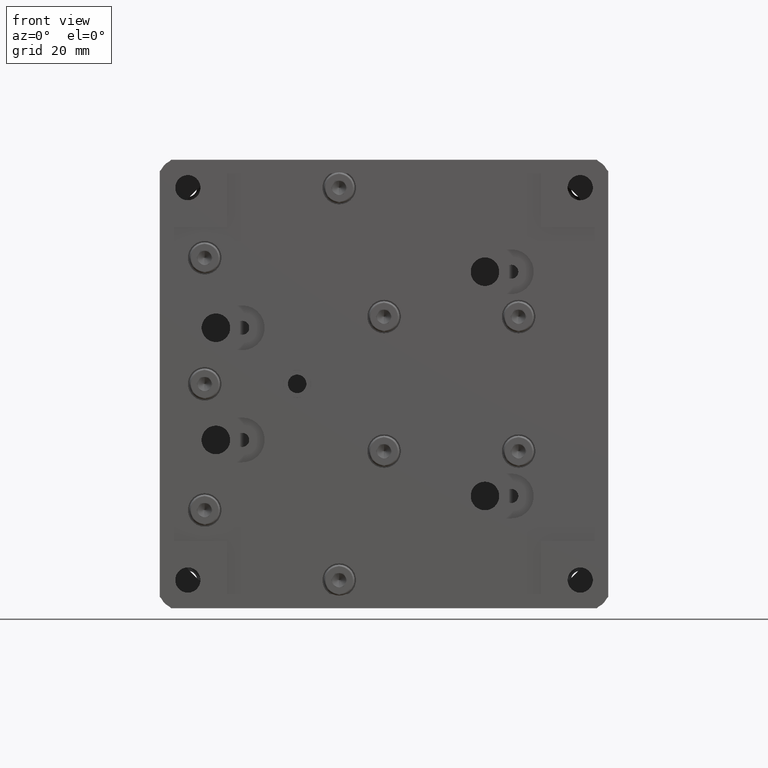
[diagram: clean part render]
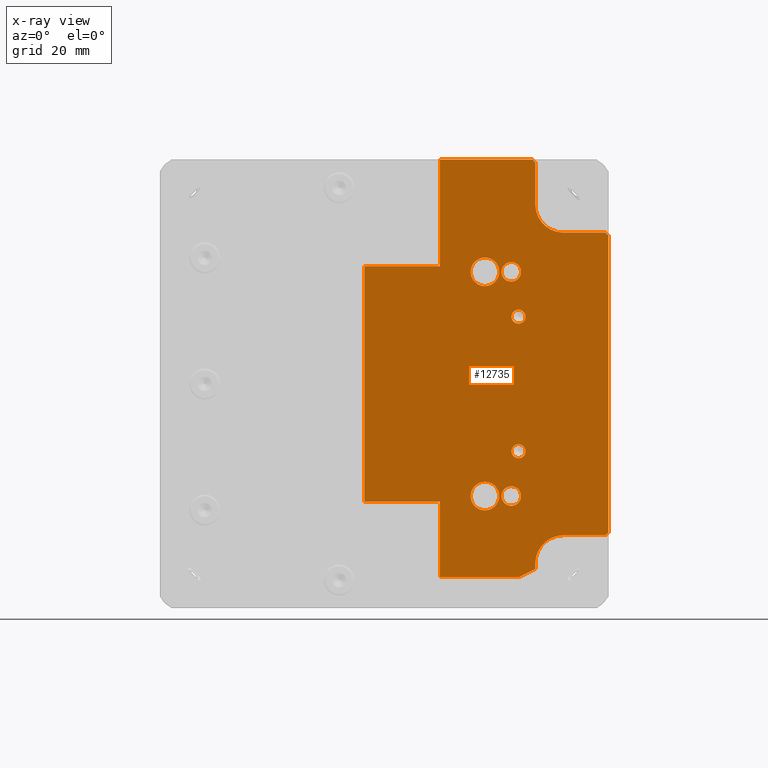
[diagram: x-ray — body ghosted, one internal face saturated and labeled with its STEP entity id]
A machine part, front view, then the same camera in x-ray: the body is ghosted and one INTERNAL B-rep face — a face not visible from any outside direction — is saturated and labeled: STEP entity #12735.
In plain terms, the highlighted planar face has unit normal (0, -1, 0).
Its self-contained STEP definition (entity closure, byte-faithful):
#14 = EDGE_CURVE ( 'NONE', #6667, #28354, #18960, .T. ) ;
#34 = DIRECTION ( 'NONE',  ( 0.000000000000000000, -0.000000000000000000, -1.000000000000000000 ) ) ;
#103 = EDGE_CURVE ( 'NONE', #26121, #7467, #31530, .T. ) ;
#215 = LINE ( 'NONE', #22937, #22414 ) ;
#220 = FACE_BOUND ( 'NONE', #16143, .T. ) ;
#727 = CARTESIAN_POINT ( 'NONE',  ( 22.69999999999999218, 8.000000000000000000, 21.75000000000000000 ) ) ;
#780 = DIRECTION ( 'NONE',  ( 0.000000000000000000, 0.000000000000000000, -1.000000000000000000 ) ) ;
#982 = ORIENTED_EDGE ( 'NONE', *, *, #13662, .T. ) ;
#1178 = AXIS2_PLACEMENT_3D ( 'NONE', #23961, #12142, #3293 ) ;
#1300 = CARTESIAN_POINT ( 'NONE',  ( 24.00000000000000000, 8.000000000000000000, -11.99999999999999822 ) ) ;
#1381 = AXIS2_PLACEMENT_3D ( 'NONE', #9286, #2917, #32216 ) ;
#1557 = CARTESIAN_POINT ( 'NONE',  ( -3.499999999999985789, 8.000000000000000000, 0.000000000000000000 ) ) ;
#1820 = VERTEX_POINT ( 'NONE', #5589 ) ;
#1840 = DIRECTION ( 'NONE',  ( 0.000000000000000000, 1.000000000000000000, 0.000000000000000000 ) ) ;
#1886 = VECTOR ( 'NONE', #27815, 1000.000000000000000 ) ;
#2298 = VECTOR ( 'NONE', #30797, 1000.000000000000000 ) ;
#2299 = CARTESIAN_POINT ( 'NONE',  ( 24.00000000000000000, 8.000000000000000000, -10.75000000000000000 ) ) ;
#2423 = ORIENTED_EDGE ( 'NONE', *, *, #25797, .T. ) ;
#2499 = VERTEX_POINT ( 'NONE', #16232 ) ;
#2547 = ORIENTED_EDGE ( 'NONE', *, *, #23676, .T. ) ;
#2917 = DIRECTION ( 'NONE',  ( 0.000000000000000000, 1.000000000000000000, 0.000000000000000000 ) ) ;
#3038 = DIRECTION ( 'NONE',  ( 0.000000000000000000, 1.000000000000000000, 0.000000000000000000 ) ) ;
#3293 = DIRECTION ( 'NONE',  ( 0.000000000000000000, 0.000000000000000000, -1.000000000000000000 ) ) ;
#3353 = AXIS2_PLACEMENT_3D ( 'NONE', #13207, #33836, #19029 ) ;
#3566 = PLANE ( 'NONE',  #32390 ) ;
#3661 = VERTEX_POINT ( 'NONE', #23385 ) ;
#3919 = VERTEX_POINT ( 'NONE', #19593 ) ;
#3923 = VECTOR ( 'NONE', #35588, 1000.000000000000000 ) ;
#3957 = DIRECTION ( 'NONE',  ( -1.000000000000000000, -0.000000000000000000, -0.000000000000000000 ) ) ;
#4031 = DIRECTION ( 'NONE',  ( 0.8944271909999177428, 0.000000000000000000, 0.4472135954999542085 ) ) ;
#4196 = AXIS2_PLACEMENT_3D ( 'NONE', #8423, #31351, #26405 ) ;
#4234 = DIRECTION ( 'NONE',  ( 0.000000000000000000, 1.000000000000000000, 0.000000000000000000 ) ) ;
#4543 = VERTEX_POINT ( 'NONE', #30219 ) ;
#4558 = EDGE_CURVE ( 'NONE', #28797, #10318, #6382, .T. ) ;
#4639 = VERTEX_POINT ( 'NONE', #33766 ) ;
#4787 = CARTESIAN_POINT ( 'NONE',  ( 32.00000000000003553, 8.000000000000007105, 27.00000000000000000 ) ) ;
#4844 = CARTESIAN_POINT ( 'NONE',  ( 17.99999999999999289, 8.000000000000000000, 19.99999999999999645 ) ) ;
#5434 = EDGE_CURVE ( 'NONE', #13845, #17043, #23989, .T. ) ;
#5468 = VECTOR ( 'NONE', #11024, 1000.000000000000000 ) ;
#5589 = CARTESIAN_POINT ( 'NONE',  ( 32.00000000000003553, 8.000000000000005329, -27.00000000000000000 ) ) ;
#6082 = ORIENTED_EDGE ( 'NONE', *, *, #15758, .T. ) ;
#6175 = CIRCLE ( 'NONE', #1381, 2.550000000000000266 ) ;
#6342 = VERTEX_POINT ( 'NONE', #727 ) ;
#6382 = CIRCLE ( 'NONE', #7592, 1.249999999999997558 ) ;
#6561 = CIRCLE ( 'NONE', #1178, 1.249999999999997558 ) ;
#6667 = VERTEX_POINT ( 'NONE', #31321 ) ;
#6677 = DIRECTION ( 'NONE',  ( 0.000000000000000000, 0.000000000000000000, -1.000000000000000000 ) ) ;
#6846 = CARTESIAN_POINT ( 'NONE',  ( 24.00000000000001066, 8.000000000000000000, -34.49999999999998579 ) ) ;
#6983 = ORIENTED_EDGE ( 'NONE', *, *, #103, .T. ) ;
#6988 = VECTOR ( 'NONE', #4031, 1000.000000000000000 ) ;
#7190 = DIRECTION ( 'NONE',  ( 0.000000000000000000, -0.000000000000000000, -1.000000000000000000 ) ) ;
#7228 = CARTESIAN_POINT ( 'NONE',  ( 27.00000000000004263, 8.000000000000000000, 0.000000000000000000 ) ) ;
#7467 = VERTEX_POINT ( 'NONE', #23135 ) ;
#7592 = AXIS2_PLACEMENT_3D ( 'NONE', #1300, #35468, #30407 ) ;
#7684 = ORIENTED_EDGE ( 'NONE', *, *, #16339, .T. ) ;
#8036 = CIRCLE ( 'NONE', #17649, 1.750000000000001554 ) ;
#8184 = CARTESIAN_POINT ( 'NONE',  ( 18.00000000000000711, 8.000000000000000000, -22.54999999999999005 ) ) ;
#8261 = CARTESIAN_POINT ( 'NONE',  ( 0.000000000000000000, 8.000000000000000000, 26.99999999999999645 ) ) ;
#8381 = EDGE_LOOP ( 'NONE', ( #14907, #24827 ) ) ;
#8423 = CARTESIAN_POINT ( 'NONE',  ( 24.00000000000000000, 8.000000000000000000, 12.00000000000000178 ) ) ;
#8483 = FACE_BOUND ( 'NONE', #22692, .T. ) ;
#8576 = EDGE_LOOP ( 'NONE', ( #32585, #18809 ) ) ;
#8715 = LINE ( 'NONE', #25826, #25892 ) ;
#8774 = EDGE_CURVE ( 'NONE', #4543, #15415, #24605, .T. ) ;
#9129 = EDGE_CURVE ( 'NONE', #25798, #9602, #16838, .T. ) ;
#9217 = DIRECTION ( 'NONE',  ( 0.000000000000000000, 1.000000000000000000, 0.000000000000000000 ) ) ;
#9286 = CARTESIAN_POINT ( 'NONE',  ( 18.00000000000000711, 8.000000000000000000, -19.99999999999998934 ) ) ;
#9593 = VECTOR ( 'NONE', #3957, 1000.000000000000000 ) ;
#9602 = VERTEX_POINT ( 'NONE', #13226 ) ;
#9809 = LINE ( 'NONE', #1557, #20121 ) ;
#10059 = CARTESIAN_POINT ( 'NONE',  ( 40.00000000000003553, 8.000000000000000000, 0.000000000000000000 ) ) ;
#10146 = CARTESIAN_POINT ( 'NONE',  ( 32.00000000000003553, 8.000000000000007105, 32.00000000000000000 ) ) ;
#10318 = VERTEX_POINT ( 'NONE', #16150 ) ;
#10433 = EDGE_CURVE ( 'NONE', #15415, #4543, #20382, .T. ) ;
#10560 = EDGE_CURVE ( 'NONE', #9602, #2499, #24331, .T. ) ;
#10877 = CARTESIAN_POINT ( 'NONE',  ( 10.00000000000001243, 8.000000000000005329, 21.00000000000000000 ) ) ;
#11024 = DIRECTION ( 'NONE',  ( 1.000000000000000000, 0.000000000000000000, 0.000000000000000000 ) ) ;
#11054 = VERTEX_POINT ( 'NONE', #23904 ) ;
#11087 = LINE ( 'NONE', #28383, #17803 ) ;
#11307 = ORIENTED_EDGE ( 'NONE', *, *, #33908, .T. ) ;
#11549 = DIRECTION ( 'NONE',  ( 1.000000000000000000, 0.000000000000000000, 0.000000000000000000 ) ) ;
#11671 = FACE_BOUND ( 'NONE', #32676, .T. ) ;
#11702 = VERTEX_POINT ( 'NONE', #10877 ) ;
#12142 = DIRECTION ( 'NONE',  ( 0.000000000000000000, 1.000000000000000000, 0.000000000000000000 ) ) ;
#12262 = VERTEX_POINT ( 'NONE', #36939 ) ;
#12310 = LINE ( 'NONE', #6846, #6988 ) ;
#12333 = CIRCLE ( 'NONE', #36917, 1.750000000000001554 ) ;
#12396 = EDGE_CURVE ( 'NONE', #10318, #28797, #6561, .T. ) ;
#12447 = ORIENTED_EDGE ( 'NONE', *, *, #26135, .T. ) ;
#12521 = LINE ( 'NONE', #18341, #25134 ) ;
#12611 = CARTESIAN_POINT ( 'NONE',  ( 22.69999999999998153, 8.000000000000000000, -21.75000000000000711 ) ) ;
#12735 = ADVANCED_FACE ( 'NONE', ( #220, #8483, #29314, #20294, #11671, #25770, #20488 ), #3566, .T. ) ;
#12781 = LINE ( 'NONE', #27943, #5468 ) ;
#12975 = CARTESIAN_POINT ( 'NONE',  ( 22.69999999999999218, 8.000000000000000000, 18.24999999999999645 ) ) ;
#12998 = ORIENTED_EDGE ( 'NONE', *, *, #36245, .T. ) ;
#13129 = VERTEX_POINT ( 'NONE', #20256 ) ;
#13130 = EDGE_LOOP ( 'NONE', ( #14703, #18642 ) ) ;
#13133 = ORIENTED_EDGE ( 'NONE', *, *, #14, .T. ) ;
#13207 = CARTESIAN_POINT ( 'NONE',  ( 22.69999999999999218, 8.000000000000000000, 19.99999999999999645 ) ) ;
#13226 = CARTESIAN_POINT ( 'NONE',  ( 27.00000000000004619, 8.000000000000005329, 32.00000000000000000 ) ) ;
#13334 = DIRECTION ( 'NONE',  ( 0.7071067811865378028, 0.000000000000000000, 0.7071067811865573427 ) ) ;
#13347 = CARTESIAN_POINT ( 'NONE',  ( 22.69999999999998153, 8.000000000000000000, -18.25000000000000355 ) ) ;
#13379 = ORIENTED_EDGE ( 'NONE', *, *, #27803, .T. ) ;
#13662 = EDGE_CURVE ( 'NONE', #18183, #13129, #12781, .T. ) ;
#13845 = VERTEX_POINT ( 'NONE', #15146 ) ;
#14058 = EDGE_CURVE ( 'NONE', #1820, #6667, #8715, .T. ) ;
#14090 = CIRCLE ( 'NONE', #18890, 2.550000000000000266 ) ;
#14340 = ORIENTED_EDGE ( 'NONE', *, *, #25846, .T. ) ;
#14703 = ORIENTED_EDGE ( 'NONE', *, *, #17491, .T. ) ;
#14907 = ORIENTED_EDGE ( 'NONE', *, *, #12396, .T. ) ;
#14962 = DIRECTION ( 'NONE',  ( 0.000000000000000000, 0.000000000000000000, 1.000000000000000000 ) ) ;
#15023 = AXIS2_PLACEMENT_3D ( 'NONE', #10146, #28009, #21605 ) ;
#15140 = DIRECTION ( 'NONE',  ( 0.000000000000000000, 1.000000000000000000, 0.000000000000000000 ) ) ;
#15146 = CARTESIAN_POINT ( 'NONE',  ( 18.00000000000000711, 8.000000000000000000, -17.44999999999998863 ) ) ;
#15415 = VERTEX_POINT ( 'NONE', #22865 ) ;
#15710 = DIRECTION ( 'NONE',  ( 0.000000000000000000, 0.000000000000000000, -1.000000000000000000 ) ) ;
#15721 = LINE ( 'NONE', #10059, #31769 ) ;
#15758 = EDGE_CURVE ( 'NONE', #20870, #6342, #35741, .T. ) ;
#16081 = LINE ( 'NONE', #21310, #18342 ) ;
#16143 = EDGE_LOOP ( 'NONE', ( #6082, #12998 ) ) ;
#16150 = CARTESIAN_POINT ( 'NONE',  ( 24.00000000000000000, 8.000000000000000000, -13.24999999999999645 ) ) ;
#16232 = CARTESIAN_POINT ( 'NONE',  ( 27.00000000000004263, 7.999999999999977796, 39.50000000000000000 ) ) ;
#16339 = EDGE_CURVE ( 'NONE', #31517, #4639, #30313, .T. ) ;
#16345 = LINE ( 'NONE', #33598, #2298 ) ;
#16700 = CARTESIAN_POINT ( 'NONE',  ( 39.50000000000004974, 8.000000000000007105, -26.99999999999999645 ) ) ;
#16838 = CIRCLE ( 'NONE', #15023, 4.999999999999997335 ) ;
#17043 = VERTEX_POINT ( 'NONE', #8184 ) ;
#17491 = EDGE_CURVE ( 'NONE', #17043, #13845, #6175, .T. ) ;
#17649 = AXIS2_PLACEMENT_3D ( 'NONE', #29507, #9217, #780 ) ;
#17803 = VECTOR ( 'NONE', #33624, 1000.000000000000000 ) ;
#18152 = CARTESIAN_POINT ( 'NONE',  ( 18.00000000000000711, 8.000000000000000000, -19.99999999999998934 ) ) ;
#18183 = VERTEX_POINT ( 'NONE', #19376 ) ;
#18341 = CARTESIAN_POINT ( 'NONE',  ( 27.00000000000004619, 8.000000000000007105, -39.99999999999999289 ) ) ;
#18342 = VECTOR ( 'NONE', #24717, 1000.000000000000114 ) ;
#18378 = EDGE_CURVE ( 'NONE', #3661, #11702, #215, .T. ) ;
#18421 = CARTESIAN_POINT ( 'NONE',  ( 27.00000000000004619, 8.000000000000007105, -32.99999999999998579 ) ) ;
#18642 = ORIENTED_EDGE ( 'NONE', *, *, #5434, .T. ) ;
#18809 = ORIENTED_EDGE ( 'NONE', *, *, #8774, .T. ) ;
#18890 = AXIS2_PLACEMENT_3D ( 'NONE', #36471, #30842, #31404 ) ;
#18936 = CARTESIAN_POINT ( 'NONE',  ( 40.00000000000003553, 8.000000000000003553, -26.49999999999999645 ) ) ;
#18960 = LINE ( 'NONE', #16700, #22890 ) ;
#19029 = DIRECTION ( 'NONE',  ( 0.000000000000000000, 0.000000000000000000, -1.000000000000000000 ) ) ;
#19376 = CARTESIAN_POINT ( 'NONE',  ( -3.499999999999996003, 8.000000000000007105, -21.00000000000000000 ) ) ;
#19525 = LINE ( 'NONE', #8261, #9593 ) ;
#19527 = CARTESIAN_POINT ( 'NONE',  ( -3.499999999999985789, 8.000000000000003553, 21.00000000000000000 ) ) ;
#19593 = CARTESIAN_POINT ( 'NONE',  ( 26.50000000000004263, 7.999999999999967137, 39.99999999999999289 ) ) ;
#19687 = VERTEX_POINT ( 'NONE', #18421 ) ;
#19897 = EDGE_CURVE ( 'NONE', #3919, #3661, #16345, .T. ) ;
#20098 = ORIENTED_EDGE ( 'NONE', *, *, #10560, .T. ) ;
#20106 = DIRECTION ( 'NONE',  ( 0.000000000000000000, -0.000000000000000000, -1.000000000000000000 ) ) ;
#20121 = VECTOR ( 'NONE', #7190, 1000.000000000000000 ) ;
#20130 = CARTESIAN_POINT ( 'NONE',  ( 22.69999999999999218, 8.000000000000000000, 19.99999999999999645 ) ) ;
#20256 = CARTESIAN_POINT ( 'NONE',  ( 10.00000000000001066, 8.000000000000005329, -21.00000000000000355 ) ) ;
#20294 = FACE_BOUND ( 'NONE', #8576, .T. ) ;
#20382 = CIRCLE ( 'NONE', #4196, 1.249999999999997558 ) ;
#20488 = FACE_OUTER_BOUND ( 'NONE', #34099, .T. ) ;
#20870 = VERTEX_POINT ( 'NONE', #12975 ) ;
#21069 = VERTEX_POINT ( 'NONE', #13347 ) ;
#21076 = VECTOR ( 'NONE', #31707, 1000.000000000000000 ) ;
#21310 = CARTESIAN_POINT ( 'NONE',  ( 27.00000000000004619, 7.999999999999923617, 39.49999999999999289 ) ) ;
#21326 = CARTESIAN_POINT ( 'NONE',  ( 17.99999999999999289, 8.000000000000000000, 17.44999999999999574 ) ) ;
#21514 = DIRECTION ( 'NONE',  ( -0.000000000000000000, 0.000000000000000000, 1.000000000000000000 ) ) ;
#21605 = DIRECTION ( 'NONE',  ( 0.000000000000000000, 0.000000000000000000, 1.000000000000000000 ) ) ;
#22414 = VECTOR ( 'NONE', #20106, 1000.000000000000000 ) ;
#22475 = DIRECTION ( 'NONE',  ( 0.000000000000000000, 1.000000000000000000, 0.000000000000000000 ) ) ;
#22692 = EDGE_LOOP ( 'NONE', ( #14340, #13379 ) ) ;
#22865 = CARTESIAN_POINT ( 'NONE',  ( 24.00000000000000000, 8.000000000000000000, 10.75000000000000355 ) ) ;
#22890 = VECTOR ( 'NONE', #13334, 1000.000000000000000 ) ;
#22937 = CARTESIAN_POINT ( 'NONE',  ( 10.00000000000001954, 8.000000000000000000, 0.000000000000000000 ) ) ;
#23135 = CARTESIAN_POINT ( 'NONE',  ( 39.50000000000001421, 8.000000000000005329, 26.99999999999999645 ) ) ;
#23385 = CARTESIAN_POINT ( 'NONE',  ( 10.00000000000001954, 7.999999999999991118, 39.99999999999999289 ) ) ;
#23390 = ORIENTED_EDGE ( 'NONE', *, *, #14058, .T. ) ;
#23395 = AXIS2_PLACEMENT_3D ( 'NONE', #31234, #28779, #36858 ) ;
#23493 = ORIENTED_EDGE ( 'NONE', *, *, #30326, .T. ) ;
#23676 = EDGE_CURVE ( 'NONE', #12262, #19687, #12310, .T. ) ;
#23734 = CARTESIAN_POINT ( 'NONE',  ( 40.00000000000000711, 8.000000000000007105, 26.49999999999998224 ) ) ;
#23904 = CARTESIAN_POINT ( 'NONE',  ( 10.00000000000001599, 8.000000000000003553, -34.49999999999999289 ) ) ;
#23961 = CARTESIAN_POINT ( 'NONE',  ( 24.00000000000000000, 8.000000000000000000, -11.99999999999999822 ) ) ;
#23989 = CIRCLE ( 'NONE', #33084, 2.550000000000000266 ) ;
#24160 = CARTESIAN_POINT ( 'NONE',  ( 0.000000000000000000, 8.000000000000000000, -34.49999999999999289 ) ) ;
#24254 = CARTESIAN_POINT ( 'NONE',  ( 0.000000000000000000, 8.000000000000000000, 21.00000000000000000 ) ) ;
#24257 = CARTESIAN_POINT ( 'NONE',  ( 27.00000000000003908, 8.000000000000007105, -32.00000000000000711 ) ) ;
#24331 = LINE ( 'NONE', #7228, #29990 ) ;
#24551 = AXIS2_PLACEMENT_3D ( 'NONE', #36768, #22475, #29798 ) ;
#24605 = CIRCLE ( 'NONE', #23395, 1.249999999999997558 ) ;
#24717 = DIRECTION ( 'NONE',  ( -0.7071067811865474617, 0.000000000000000000, 0.7071067811865474617 ) ) ;
#24827 = ORIENTED_EDGE ( 'NONE', *, *, #4558, .T. ) ;
#25134 = VECTOR ( 'NONE', #14962, 1000.000000000000000 ) ;
#25706 = ORIENTED_EDGE ( 'NONE', *, *, #36541, .T. ) ;
#25770 = FACE_BOUND ( 'NONE', #13130, .T. ) ;
#25797 = EDGE_CURVE ( 'NONE', #11054, #12262, #30338, .T. ) ;
#25798 = VERTEX_POINT ( 'NONE', #4787 ) ;
#25799 = EDGE_CURVE ( 'NONE', #2499, #3919, #16081, .T. ) ;
#25826 = CARTESIAN_POINT ( 'NONE',  ( 0.000000000000000000, 8.000000000000000000, -27.00000000000000000 ) ) ;
#25846 = EDGE_CURVE ( 'NONE', #31265, #21069, #12333, .T. ) ;
#25892 = VECTOR ( 'NONE', #11549, 1000.000000000000000 ) ;
#25977 = DIRECTION ( 'NONE',  ( 0.000000000000000000, 0.000000000000000000, -1.000000000000000000 ) ) ;
#26121 = VERTEX_POINT ( 'NONE', #23734 ) ;
#26135 = EDGE_CURVE ( 'NONE', #28083, #18183, #9809, .T. ) ;
#26269 = ORIENTED_EDGE ( 'NONE', *, *, #32622, .T. ) ;
#26405 = DIRECTION ( 'NONE',  ( 0.000000000000000000, 0.000000000000000000, -1.000000000000000000 ) ) ;
#27074 = CIRCLE ( 'NONE', #33066, 1.750000000000001554 ) ;
#27105 = ORIENTED_EDGE ( 'NONE', *, *, #18378, .T. ) ;
#27218 = DIRECTION ( 'NONE',  ( 0.000000000000000000, 0.000000000000000000, -1.000000000000000000 ) ) ;
#27803 = EDGE_CURVE ( 'NONE', #21069, #31265, #8036, .T. ) ;
#27815 = DIRECTION ( 'NONE',  ( -1.000000000000000000, -0.000000000000000000, -0.000000000000000000 ) ) ;
#27943 = CARTESIAN_POINT ( 'NONE',  ( 0.000000000000000000, 8.000000000000000000, -21.00000000000000000 ) ) ;
#28009 = DIRECTION ( 'NONE',  ( 0.000000000000000000, 1.000000000000000000, 0.000000000000000000 ) ) ;
#28083 = VERTEX_POINT ( 'NONE', #19527 ) ;
#28161 = ORIENTED_EDGE ( 'NONE', *, *, #25799, .T. ) ;
#28354 = VERTEX_POINT ( 'NONE', #18936 ) ;
#28383 = CARTESIAN_POINT ( 'NONE',  ( 10.00000000000001066, 8.000000000000000000, 0.000000000000000000 ) ) ;
#28779 = DIRECTION ( 'NONE',  ( 0.000000000000000000, 1.000000000000000000, 0.000000000000000000 ) ) ;
#28797 = VERTEX_POINT ( 'NONE', #2299 ) ;
#29200 = VERTEX_POINT ( 'NONE', #24257 ) ;
#29314 = FACE_BOUND ( 'NONE', #8381, .T. ) ;
#29347 = ORIENTED_EDGE ( 'NONE', *, *, #9129, .T. ) ;
#29507 = CARTESIAN_POINT ( 'NONE',  ( 22.69999999999998153, 8.000000000000000000, -20.00000000000000355 ) ) ;
#29581 = DIRECTION ( 'NONE',  ( -0.000000000000000000, 0.000000000000000000, 1.000000000000000000 ) ) ;
#29625 = ORIENTED_EDGE ( 'NONE', *, *, #35429, .T. ) ;
#29798 = DIRECTION ( 'NONE',  ( 0.000000000000000000, 0.000000000000000000, 1.000000000000000000 ) ) ;
#29965 = CARTESIAN_POINT ( 'NONE',  ( 22.69999999999998153, 8.000000000000000000, -20.00000000000000355 ) ) ;
#29990 = VECTOR ( 'NONE', #29581, 1000.000000000000000 ) ;
#30219 = CARTESIAN_POINT ( 'NONE',  ( 24.00000000000000000, 8.000000000000000000, 13.25000000000000000 ) ) ;
#30313 = CIRCLE ( 'NONE', #35092, 2.550000000000000266 ) ;
#30326 = EDGE_CURVE ( 'NONE', #29200, #1820, #36540, .T. ) ;
#30338 = LINE ( 'NONE', #24160, #3923 ) ;
#30339 = EDGE_CURVE ( 'NONE', #19687, #29200, #12521, .T. ) ;
#30376 = ORIENTED_EDGE ( 'NONE', *, *, #30536, .T. ) ;
#30407 = DIRECTION ( 'NONE',  ( 0.000000000000000000, 0.000000000000000000, -1.000000000000000000 ) ) ;
#30536 = EDGE_CURVE ( 'NONE', #28354, #26121, #15721, .T. ) ;
#30797 = DIRECTION ( 'NONE',  ( -1.000000000000000000, -0.000000000000000000, -0.000000000000000000 ) ) ;
#30842 = DIRECTION ( 'NONE',  ( 0.000000000000000000, 1.000000000000000000, 0.000000000000000000 ) ) ;
#31234 = CARTESIAN_POINT ( 'NONE',  ( 24.00000000000000000, 8.000000000000000000, 12.00000000000000178 ) ) ;
#31265 = VERTEX_POINT ( 'NONE', #12611 ) ;
#31321 = CARTESIAN_POINT ( 'NONE',  ( 39.50000000000004974, 8.000000000000005329, -26.99999999999999645 ) ) ;
#31351 = DIRECTION ( 'NONE',  ( 0.000000000000000000, 1.000000000000000000, 0.000000000000000000 ) ) ;
#31404 = DIRECTION ( 'NONE',  ( 0.000000000000000000, 0.000000000000000000, -1.000000000000000000 ) ) ;
#31517 = VERTEX_POINT ( 'NONE', #21326 ) ;
#31530 = LINE ( 'NONE', #34518, #21076 ) ;
#31707 = DIRECTION ( 'NONE',  ( -0.7071067811865328068, 0.000000000000000000, 0.7071067811865622277 ) ) ;
#31769 = VECTOR ( 'NONE', #21514, 1000.000000000000000 ) ;
#31952 = CARTESIAN_POINT ( 'NONE',  ( 0.000000000000000000, 8.000000000000000000, 0.000000000000000000 ) ) ;
#32124 = ORIENTED_EDGE ( 'NONE', *, *, #19897, .T. ) ;
#32216 = DIRECTION ( 'NONE',  ( 0.000000000000000000, 0.000000000000000000, -1.000000000000000000 ) ) ;
#32390 = AXIS2_PLACEMENT_3D ( 'NONE', #31952, #37037, #34 ) ;
#32585 = ORIENTED_EDGE ( 'NONE', *, *, #10433, .T. ) ;
#32622 = EDGE_CURVE ( 'NONE', #13129, #11054, #11087, .T. ) ;
#32676 = EDGE_LOOP ( 'NONE', ( #7684, #11307 ) ) ;
#33066 = AXIS2_PLACEMENT_3D ( 'NONE', #20130, #3038, #25977 ) ;
#33074 = LINE ( 'NONE', #24254, #1886 ) ;
#33084 = AXIS2_PLACEMENT_3D ( 'NONE', #18152, #15140, #6677 ) ;
#33598 = CARTESIAN_POINT ( 'NONE',  ( 0.000000000000000000, 8.000000000000000000, 39.99999999999999289 ) ) ;
#33624 = DIRECTION ( 'NONE',  ( 0.000000000000000000, -0.000000000000000000, -1.000000000000000000 ) ) ;
#33766 = CARTESIAN_POINT ( 'NONE',  ( 17.99999999999999289, 8.000000000000000000, 22.54999999999999716 ) ) ;
#33836 = DIRECTION ( 'NONE',  ( 0.000000000000000000, 1.000000000000000000, 0.000000000000000000 ) ) ;
#33908 = EDGE_CURVE ( 'NONE', #4639, #31517, #14090, .T. ) ;
#34099 = EDGE_LOOP ( 'NONE', ( #30376, #6983, #29625, #29347, #20098, #28161, #32124, #27105, #25706, #12447, #982, #26269, #2423, #2547, #36085, #23493, #23390, #13133 ) ) ;
#34518 = CARTESIAN_POINT ( 'NONE',  ( 40.00000000000000000, 8.000000000000007105, 26.49999999999998934 ) ) ;
#35092 = AXIS2_PLACEMENT_3D ( 'NONE', #4844, #1840, #27218 ) ;
#35429 = EDGE_CURVE ( 'NONE', #7467, #25798, #19525, .T. ) ;
#35468 = DIRECTION ( 'NONE',  ( 0.000000000000000000, 1.000000000000000000, 0.000000000000000000 ) ) ;
#35588 = DIRECTION ( 'NONE',  ( 1.000000000000000000, 0.000000000000000000, 0.000000000000000000 ) ) ;
#35741 = CIRCLE ( 'NONE', #3353, 1.750000000000001554 ) ;
#36085 = ORIENTED_EDGE ( 'NONE', *, *, #30339, .T. ) ;
#36245 = EDGE_CURVE ( 'NONE', #6342, #20870, #27074, .T. ) ;
#36471 = CARTESIAN_POINT ( 'NONE',  ( 17.99999999999999289, 8.000000000000000000, 19.99999999999999645 ) ) ;
#36540 = CIRCLE ( 'NONE', #24551, 5.000000000000000888 ) ;
#36541 = EDGE_CURVE ( 'NONE', #11702, #28083, #33074, .T. ) ;
#36768 = CARTESIAN_POINT ( 'NONE',  ( 32.00000000000003553, 8.000000000000007105, -32.00000000000000000 ) ) ;
#36858 = DIRECTION ( 'NONE',  ( 0.000000000000000000, 0.000000000000000000, -1.000000000000000000 ) ) ;
#36917 = AXIS2_PLACEMENT_3D ( 'NONE', #29965, #4234, #15710 ) ;
#36939 = CARTESIAN_POINT ( 'NONE',  ( 24.00000000000000711, 8.000000000000001776, -34.49999999999999289 ) ) ;
#37037 = DIRECTION ( 'NONE',  ( 0.000000000000000000, -1.000000000000000000, 0.000000000000000000 ) ) ;